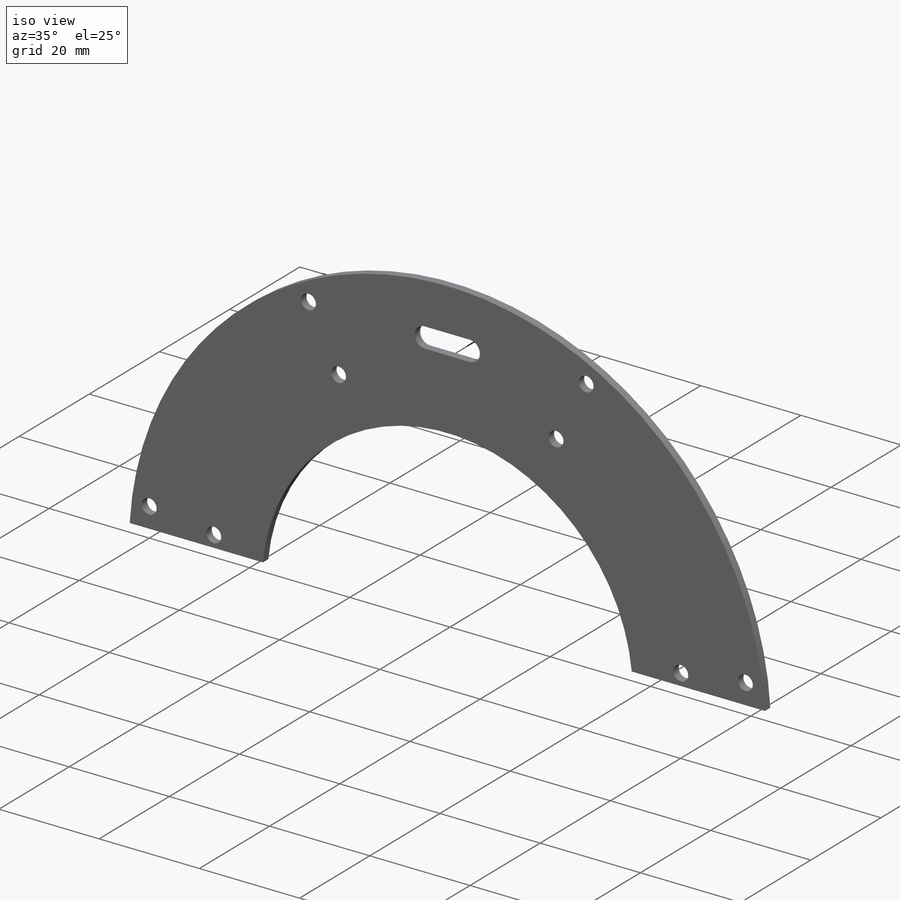
[diagram: iso view]
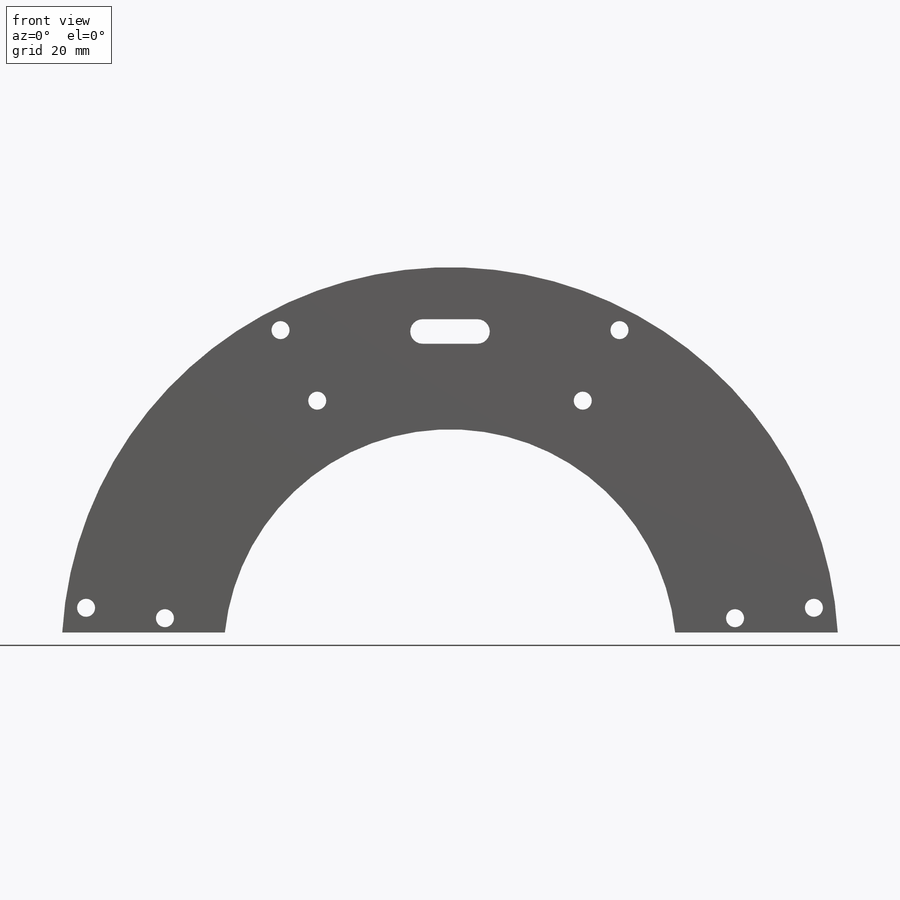
[diagram: front view]
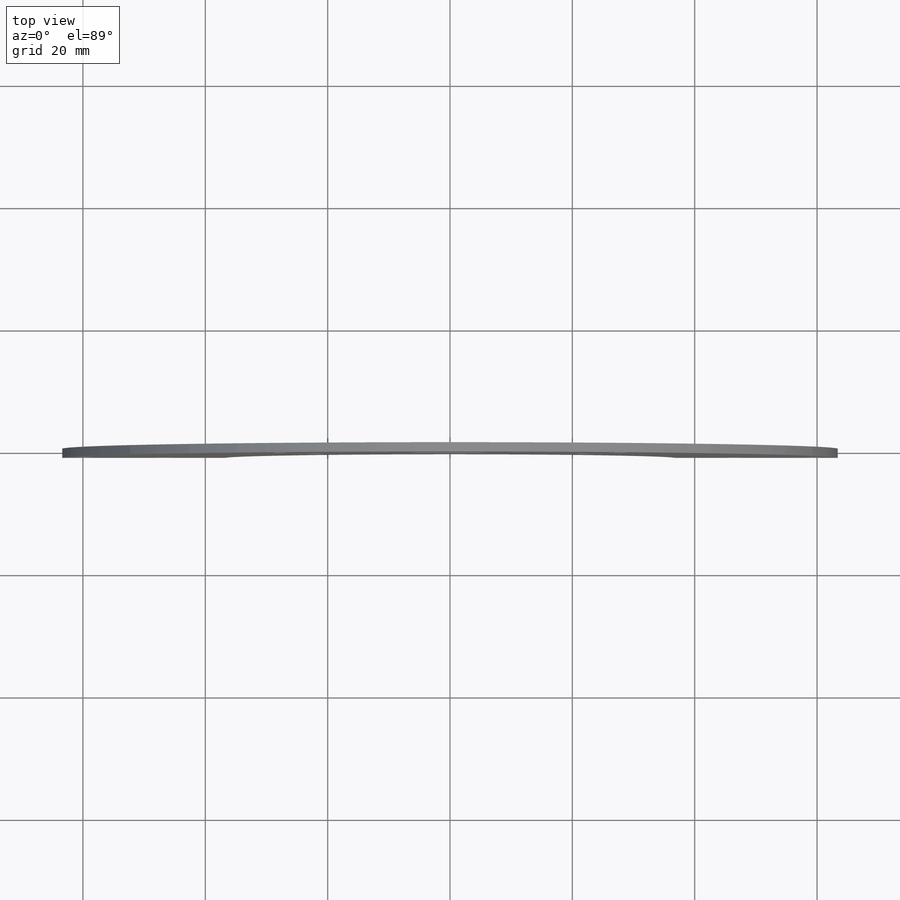
[diagram: top view]
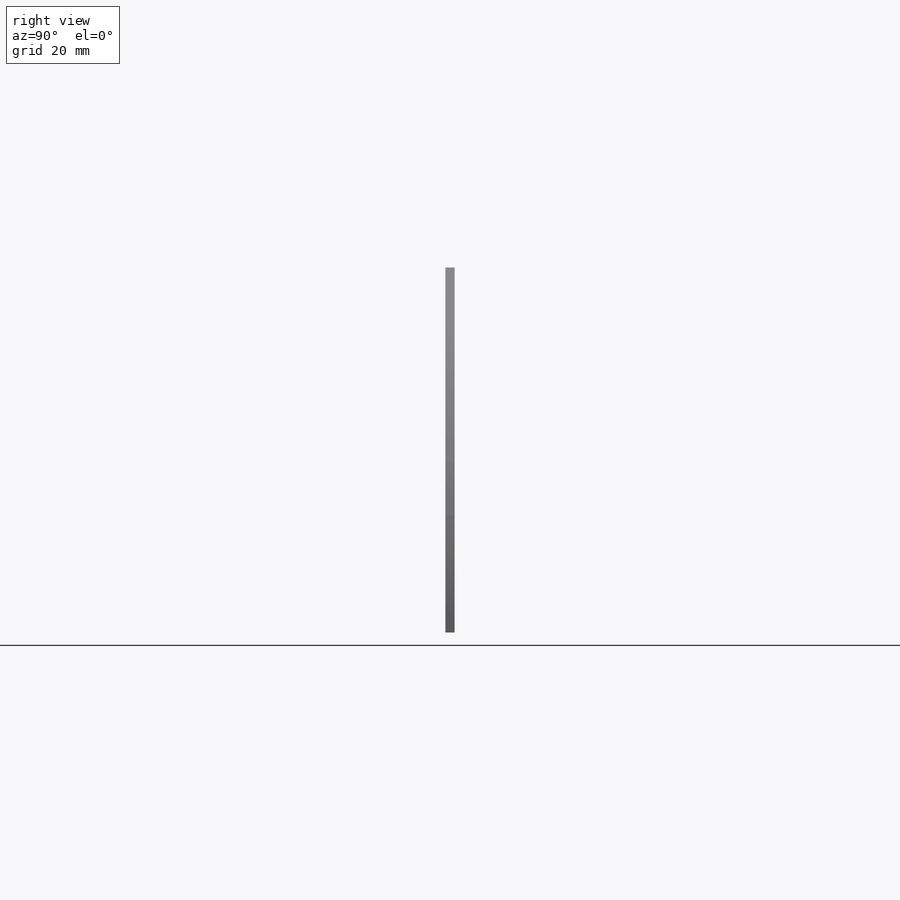
[diagram: right view]
SOLIDWORKS PART (.sldprt)
format: sldprt  version: not decoded by parser v0  size: 225,792 bytes
history: native  units: mm
features: sketch x4, material x1, extrude x1, hole x1, pattern_circular x1, cut_extrude x1 (+11 scaffold rows collapsed)
feature tree (20):
  scaffold x11  (default folders/planes/origin — collapsed)
  material  "cirlex"
  sketch  "Sketch1"  dims[D1=63.5mm D2=37.0mm D3=3.8mm]
  extrude  "Boss-Extrude1"  Depth=1.524mm
  hole  "#4 Clearance Hole1"  Diameter=2.9464mm Depth=135.89mm
  sketch  "Sketch3"  dims[c1.D1=~29.389943mm c2.D1=7.5deg c2.D2=60.0mm c2.D3=47.0mm]
  sketch  "Sketch2"  dims[hole-wizard template sketch: 47 standard entries collapsed; hole parameters kept: c15.Hole Depth=135.89mm c15.D3=~14.816244mm c15.Drill Angle=118.0deg]
  pattern_circular  "CirPattern1"  Count=4 Angle=55deg
  sketch  "Sketch4"  dims[D1=112.0mm D2=100.0mm D3=53.0mm D4=4.0mm D5=9.0mm]
  cut_extrude  "Cut-Extrude1"  [1 undecoded]
decode coverage: 7 of 8 modeling features carry decoded parameters
note: ~ marks probable driven/reference dimensions
note: 1 parameter value undecoded
note: suppression state not decoded; provenance and decode notes live in map.json
